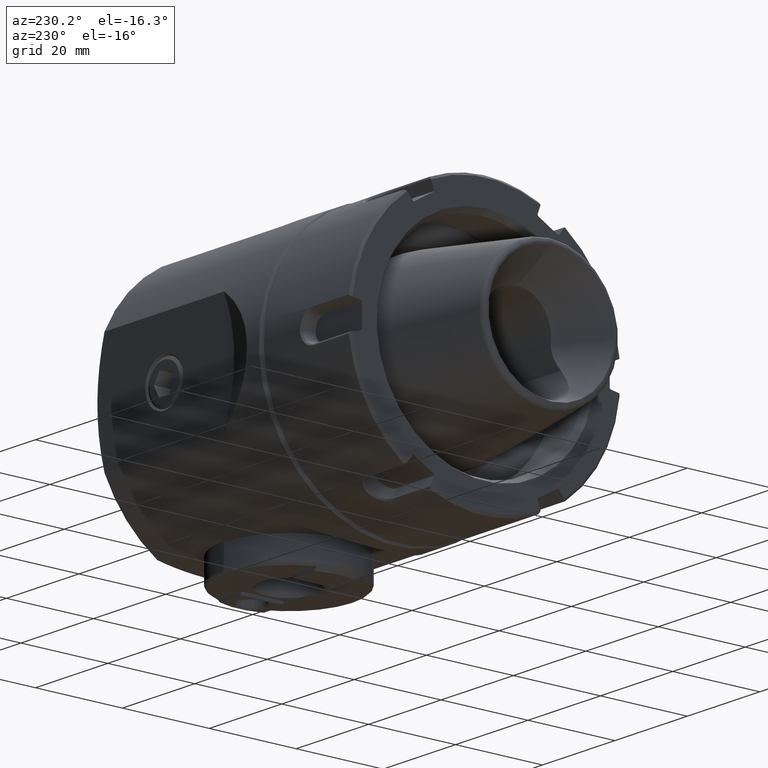
[diagram: clean part render]
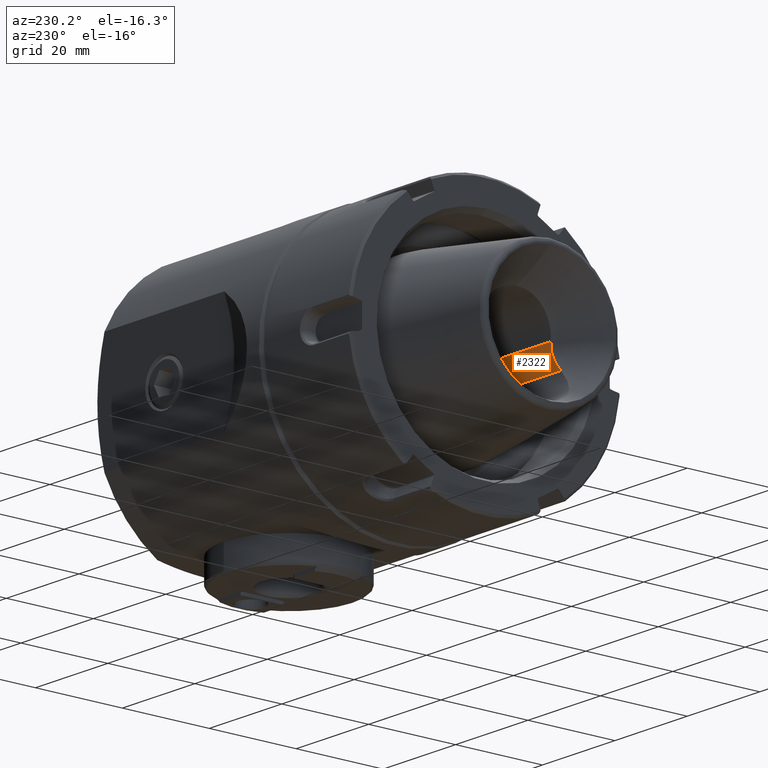
[diagram: same view with one face highlighted and labeled with its STEP entity id]
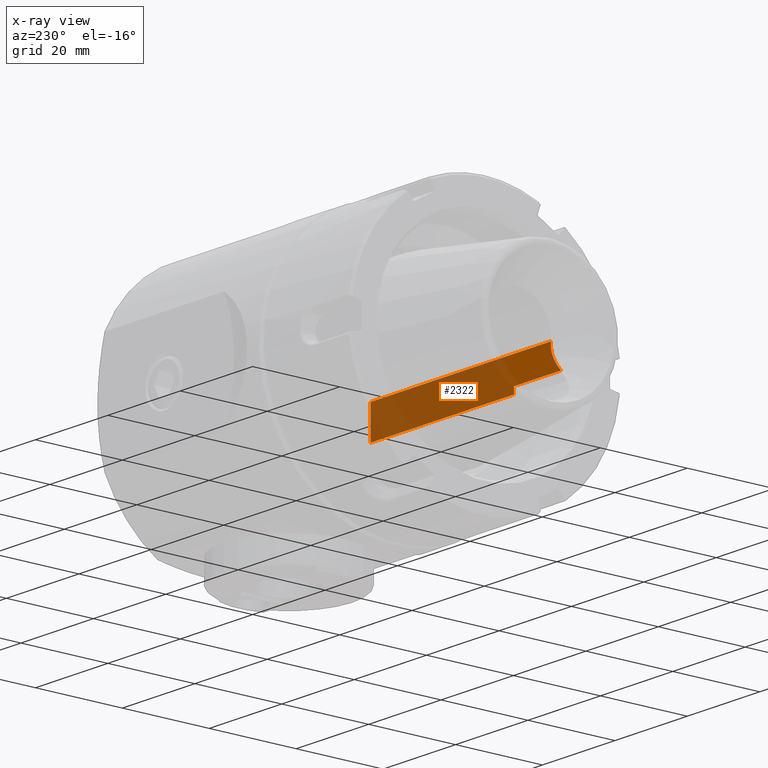
[diagram: x-ray of the same camera — body ghosted, the highlighted face saturated]
A machine part, auxiliary view. The second image highlights one B-rep face of the part: STEP entity #2322.
The next image is the same camera in x-ray: the body ghosted, the highlighted face saturated — about 80% of this face is hidden behind the body in this view.
In plain terms, the highlighted planar face has unit normal (0, -1, 0).
Its self-contained STEP definition (entity closure, byte-faithful):
#897 = DIRECTION ( 'NONE',  ( 1.000000000000000000, -4.624060513530817200E-018, -0.0000000000000000000 ) ) ;
#927 = DIRECTION ( 'NONE',  ( 0.0000000000000000000, -2.312964634635743400E-016, -1.000000000000000000 ) ) ;
#1300 = VERTEX_POINT ( 'NONE', #25104 ) ;
#2257 = VECTOR ( 'NONE', #20098, 1000.000000000000000 ) ;
#2322 = ADVANCED_FACE ( 'NONE', ( #20048 ), #28932, .F. ) ;
#2555 = CARTESIAN_POINT ( 'NONE',  ( 17.64079290569174000, -8.500000000000012400, 0.5000000000000004400 ) ) ;
#2621 = EDGE_CURVE ( 'NONE', #14874, #9048, #29558, .T. ) ;
#2761 = EDGE_CURVE ( 'NONE', #1300, #24038, #23268, .T. ) ;
#2882 = CARTESIAN_POINT ( 'NONE',  ( -42.50000000000002100, -8.500000000000003600, -5.499999999999999100 ) ) ;
#3786 = EDGE_CURVE ( 'NONE', #14949, #9048, #6857, .T. ) ;
#4066 = ORIENTED_EDGE ( 'NONE', *, *, #2761, .F. ) ;
#4273 = CARTESIAN_POINT ( 'NONE',  ( -32.41132891258876500, -8.500000000000001800, -1.754179349024693300 ) ) ;
#4498 = EDGE_CURVE ( 'NONE', #21401, #14874, #14568, .T. ) ;
#4869 = DIRECTION ( 'NONE',  ( 0.0000000000000000000, 1.619075244245019800E-015, -1.000000000000000000 ) ) ;
#6246 = CARTESIAN_POINT ( 'NONE',  ( -34.16589989647840000, -8.500000000000001800, -4.666431962360143800 ) ) ;
#6857 = LINE ( 'NONE', #22838, #15726 ) ;
#8471 = ORIENTED_EDGE ( 'NONE', *, *, #2621, .F. ) ;
#8495 = CARTESIAN_POINT ( 'NONE',  ( -34.53606089955118100, -8.500000000000005300, -5.090961387397044300 ) ) ;
#8807 = CARTESIAN_POINT ( 'NONE',  ( -32.74530282732651900, -8.500000000000001800, -2.539682007511249400 ) ) ;
#8960 = CARTESIAN_POINT ( 'NONE',  ( 2.999999999999988900, -8.500000000000000000, -7.000000000000000900 ) ) ;
#9048 = VERTEX_POINT ( 'NONE', #30426 ) ;
#9412 = VECTOR ( 'NONE', #4869, 1000.000000000000000 ) ;
#9524 = CARTESIAN_POINT ( 'NONE',  ( -22.00000000000006000, -8.500000000000012400, 0.5000000000000004400 ) ) ;
#9676 = CARTESIAN_POINT ( 'NONE',  ( -22.00000000000006000, -8.500000000000000000, -6.999999999999998200 ) ) ;
#10224 = CARTESIAN_POINT ( 'NONE',  ( -22.00000000000006000, -8.500000000000003600, -5.499999999999999100 ) ) ;
#11177 = CARTESIAN_POINT ( 'NONE',  ( -33.15021862702702300, -8.500000000000001800, -3.289395833066991200 ) ) ;
#12869 = EDGE_LOOP ( 'NONE', ( #17734, #13812, #4066, #29456, #28777, #8471 ) ) ;
#13262 = CARTESIAN_POINT ( 'NONE',  ( -32.18669152154372900, -8.500000000000000000, -0.9235989081377933300 ) ) ;
#13657 = CARTESIAN_POINT ( 'NONE',  ( -32.32131194496133000, -8.500000000000001800, -1.479006035496435800 ) ) ;
#13730 = VECTOR ( 'NONE', #30120, 1000.000000000000000 ) ;
#13812 = ORIENTED_EDGE ( 'NONE', *, *, #20638, .F. ) ;
#14568 = LINE ( 'NONE', #9524, #9412 ) ;
#14874 = VERTEX_POINT ( 'NONE', #9676 ) ;
#14949 = VERTEX_POINT ( 'NONE', #2555 ) ;
#15218 = VECTOR ( 'NONE', #897, 1000.000000000000000 ) ;
#15685 = CARTESIAN_POINT ( 'NONE',  ( -34.92094120700150500, -8.500000000000003600, -5.499999999999999100 ) ) ;
#15726 = VECTOR ( 'NONE', #17935, 1000.000000000000000 ) ;
#17333 = DIRECTION ( 'NONE',  ( 0.0000000000000000000, -1.000000000000000000, 2.312964634635743400E-016 ) ) ;
#17734 = ORIENTED_EDGE ( 'NONE', *, *, #4498, .F. ) ;
#17935 = DIRECTION ( 'NONE',  ( -0.0000000000000000000, -0.0000000000000000000, -1.000000000000000000 ) ) ;
#18185 = CARTESIAN_POINT ( 'NONE',  ( -32.14155709424062500, -8.500000000000001800, -0.6428691025033896900 ) ) ;
#18284 = CARTESIAN_POINT ( 'NONE',  ( -32.10420381639593800, -8.500000000000003600, 0.2154575497880550100 ) ) ;
#18890 = LINE ( 'NONE', #2882, #15218 ) ;
#19887 = CARTESIAN_POINT ( 'NONE',  ( 2.999999999999988900, -8.500000000000000000, -7.000000000000000000 ) ) ;
#20048 = FACE_OUTER_BOUND ( 'NONE', #12869, .T. ) ;
#20098 = DIRECTION ( 'NONE',  ( 1.000000000000000000, -0.0000000000000000000, -0.0000000000000000000 ) ) ;
#20351 = CARTESIAN_POINT ( 'NONE',  ( -32.10005616707355400, -8.500000000000001800, -0.07475432425700809200 ) ) ;
#20638 = EDGE_CURVE ( 'NONE', #24038, #21401, #18890, .T. ) ;
#20754 = CARTESIAN_POINT ( 'NONE',  ( -32.62311095818260000, -8.500000000000000000, -2.283330099505388700 ) ) ;
#21401 = VERTEX_POINT ( 'NONE', #10224 ) ;
#21510 = EDGE_CURVE ( 'NONE', #1300, #14949, #26963, .T. ) ;
#22463 = AXIS2_PLACEMENT_3D ( 'NONE', #19887, #17333, #927 ) ;
#22621 = CARTESIAN_POINT ( 'NONE',  ( -33.47352028211558700, -8.500000000000003600, -3.766917833987086800 ) ) ;
#22838 = CARTESIAN_POINT ( 'NONE',  ( 17.64079290569174000, -8.500000000000012400, -62.91079352369877100 ) ) ;
#23268 = B_SPLINE_CURVE_WITH_KNOTS ( 'NONE', 3,
 ( #29985, #18284, #20351, #18185, #13262, #13657, #4273, #20754, #8807, #11177, #22621, #6246, #8495, #25288 ),
 .UNSPECIFIED., .F., .F.,
 ( 4, 2, 2, 2, 2, 2, 4 ),
 ( 0.01516347115015014200, 0.01600559269414686100, 0.01684771423814358100, 0.01768983578214029800, 0.01853195732613701500, 0.02021620041413044500, 0.02190044350212387200 ),
 .UNSPECIFIED. ) ;
#24038 = VERTEX_POINT ( 'NONE', #15685 ) ;
#25104 = CARTESIAN_POINT ( 'NONE',  ( -32.13314449400395000, -8.500000000000001800, 0.5000000000000000000 ) ) ;
#25288 = CARTESIAN_POINT ( 'NONE',  ( -34.92094120700150500, -8.500000000000003600, -5.499999999999999100 ) ) ;
#26963 = LINE ( 'NONE', #29341, #2257 ) ;
#28777 = ORIENTED_EDGE ( 'NONE', *, *, #3786, .T. ) ;
#28932 = PLANE ( 'NONE',  #22463 ) ;
#29341 = CARTESIAN_POINT ( 'NONE',  ( 2.999999999999988900, -8.499999999999998200, 0.4999999999999989500 ) ) ;
#29456 = ORIENTED_EDGE ( 'NONE', *, *, #21510, .T. ) ;
#29558 = LINE ( 'NONE', #8960, #13730 ) ;
#29985 = CARTESIAN_POINT ( 'NONE',  ( -32.13314449400395000, -8.500000000000001800, 0.5000000000000000000 ) ) ;
#30120 = DIRECTION ( 'NONE',  ( 1.000000000000000000, -0.0000000000000000000, -0.0000000000000000000 ) ) ;
#30426 = CARTESIAN_POINT ( 'NONE',  ( 17.64079290569174000, -8.500000000000000000, -7.000000000000000900 ) ) ;